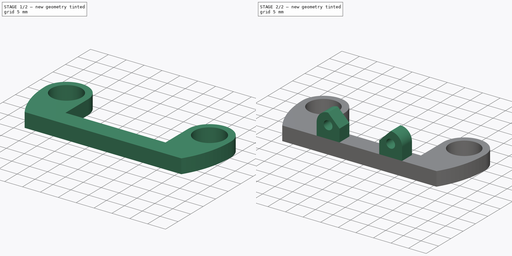
[diagram: build sequence overview — one tinted view per stage of 2, left to right]
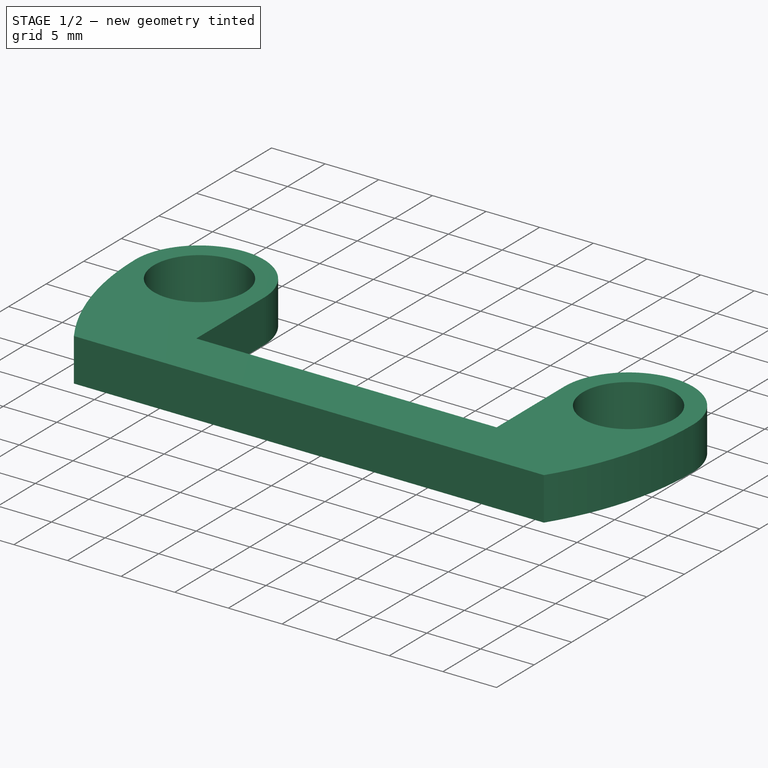
[diagram: stage 1 of 2 — iso view after this stage's code; geometry added in this stage tinted green]
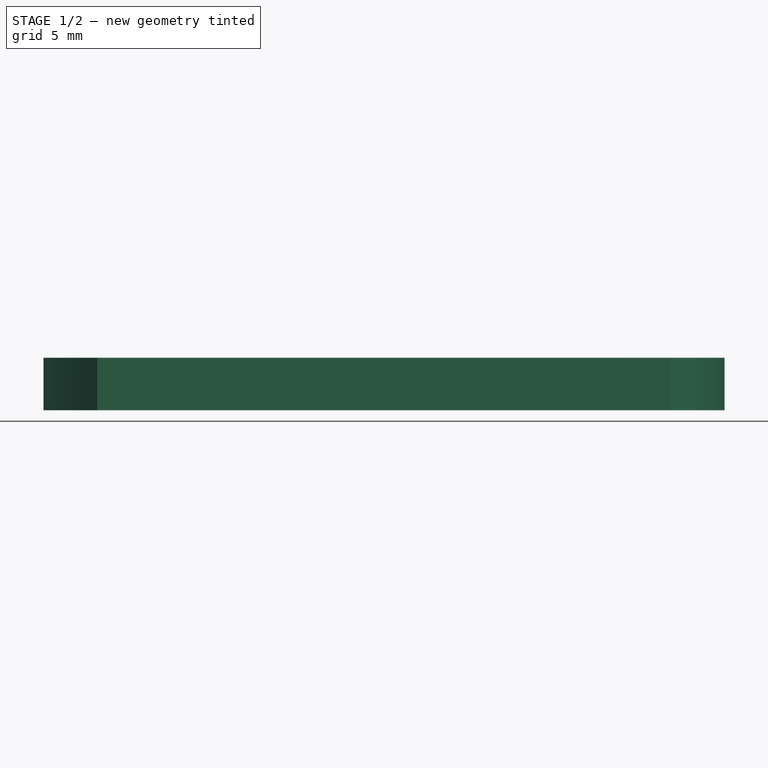
[diagram: stage 1 of 2 — front view after this stage's code; geometry added in this stage tinted green]
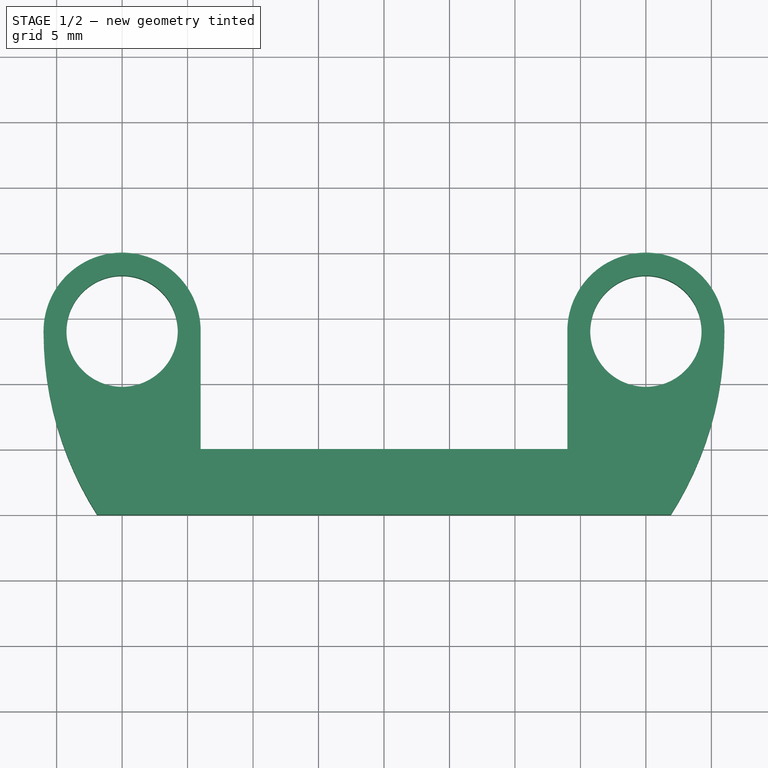
[diagram: stage 1 of 2 — top view after this stage's code; geometry added in this stage tinted green]
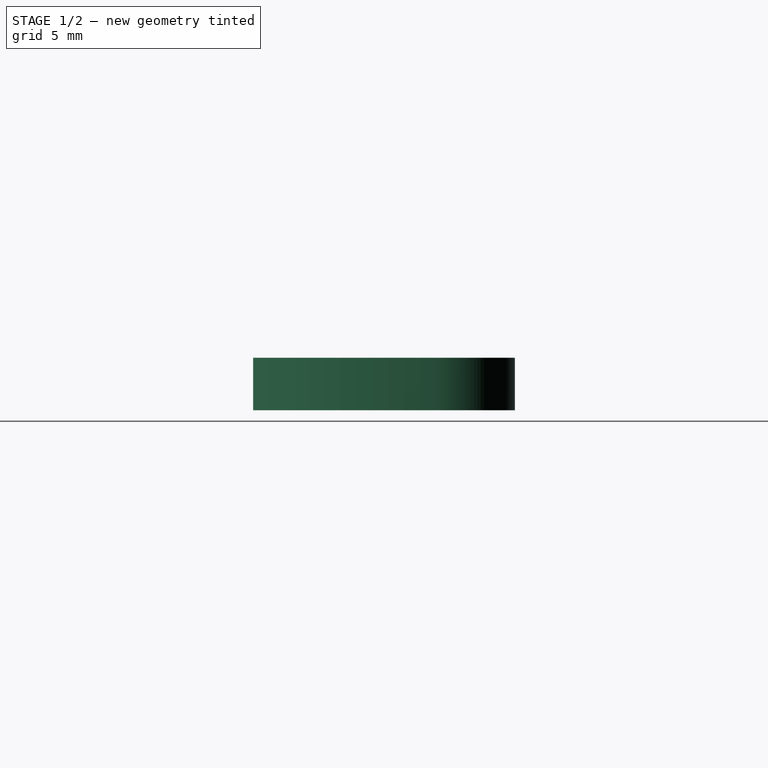
[diagram: stage 1 of 2 — right view after this stage's code; geometry added in this stage tinted green]
FCSTD DOCUMENT  (FreeCAD 1.0R38641 +468 (Git))
Label: pcb_holder
License: All rights reserved
LicenseURL: https://en.wikipedia.org/wiki/All_rights_reserved
objects: Sketcher::SketchObject×2, PartDesign::Pad×2, PartDesign::Body×1
note: 11 computed .brp shape members not serialized (recipe doc carries the construction recipe); baked Part::Feature solids carry a one-line shape summary decoded from their .brp

FEATURE [Sketcher::SketchObject] Sketch
  ArcFitTolerance = 0
  AttachmentSupport = -> [XY_Plane]
  FullyConstrained = true
  MakeInternals = false
  MapMode = 5
  sketch-geometry (11):
    g0: ArcOfCircle CenterX=-20 CenterY=14 CenterZ=0 NormalX=0 NormalY=0 NormalZ=1 AngleXU=0 Radius=6 StartAngle=0 EndAngle=3.14159
    g1: ArcOfCircle CenterX=20 CenterY=14 CenterZ=0 NormalX=0 NormalY=0 NormalZ=1 AngleXU=0 Radius=6 StartAngle=0 EndAngle=3.14159
    g2: LineSegment StartX=-14 StartY=14 StartZ=0 EndX=-14 EndY=5 EndZ=0
    g3: LineSegment StartX=-14 StartY=5 StartZ=0 EndX=14 EndY=5 EndZ=0
    g4: LineSegment StartX=14 StartY=5 StartZ=0 EndX=14 EndY=14 EndZ=0
    g5: Circle CenterX=-20 CenterY=14 CenterZ=0 NormalX=0 NormalY=0 NormalZ=1 AngleXU=0 Radius=4.25
    g6: Circle CenterX=20 CenterY=14 CenterZ=0 NormalX=0 NormalY=0 NormalZ=1 AngleXU=0 Radius=4.25
    g7: GeomPoint [constr] X=0 Y=14 Z=0
    g8: ArcOfCircle CenterX=0 CenterY=14 CenterZ=0 NormalX=0 NormalY=0 NormalZ=1 AngleXU=0 Radius=26 StartAngle=5.71458 EndAngle=6.28319
    g9: ArcOfCircle CenterX=0 CenterY=14 CenterZ=0 NormalX=0 NormalY=0 NormalZ=1 AngleXU=0 Radius=26 StartAngle=3.14159 EndAngle=3.7102
    g10: LineSegment StartX=-21.9089 StartY=9.1127e-12 StartZ=0 EndX=21.9089 EndY=9.1074e-12 EndZ=0
  constraints (30):
    c: Coincident(g2,g0)
    c: Vertical(g2)
    c: Coincident(g3,g2)
    c: Coincident(g4,g3)
    c: Coincident(g4,g1)
    c: Vertical(g4)
    c: Horizontal(g0,g0)
    c: Horizontal(g0,g0)
    c: Horizontal(g0,g1)
    c: Horizontal(g1,g1)
    c: Symmetric(g2,g3,g-2)
    c: Coincident(g5,g0)
    c: Coincident(g6,g1)
    c: Diameter(g5) = 8.5
    c: Equal(g5,g6)
    c: DistanceX(g0,g1) = 40
    c: DistanceY(g-1,g3) = 5
    c: DistanceX(g3,g3) = 28
    c: PointOnObject(g7,g-2)
    c: Horizontal(g7,g0)
    c: Coincident(g8,g7)
    c: Coincident(g8,g1)
    c: PointOnObject(g8,g-1)
    c: Coincident(g9,g8)
    c: Coincident(g9,g0)
    c: PointOnObject(g9,g-1)
    c: Coincident(g10,g9)
    c: Coincident(g10,g8)
    c: Symmetric(g0,g1,g-2)
    c: DistanceY(g-1,g1) = 14
FEATURE [PartDesign::Pad] Pad
  Direction = (0,0,1)
  Length = 4
  Length2 = 10
  Profile = -> Sketch
  ReferenceAxis = -> Sketch [N_Axis]
  Suppressed = false
  Type = 0
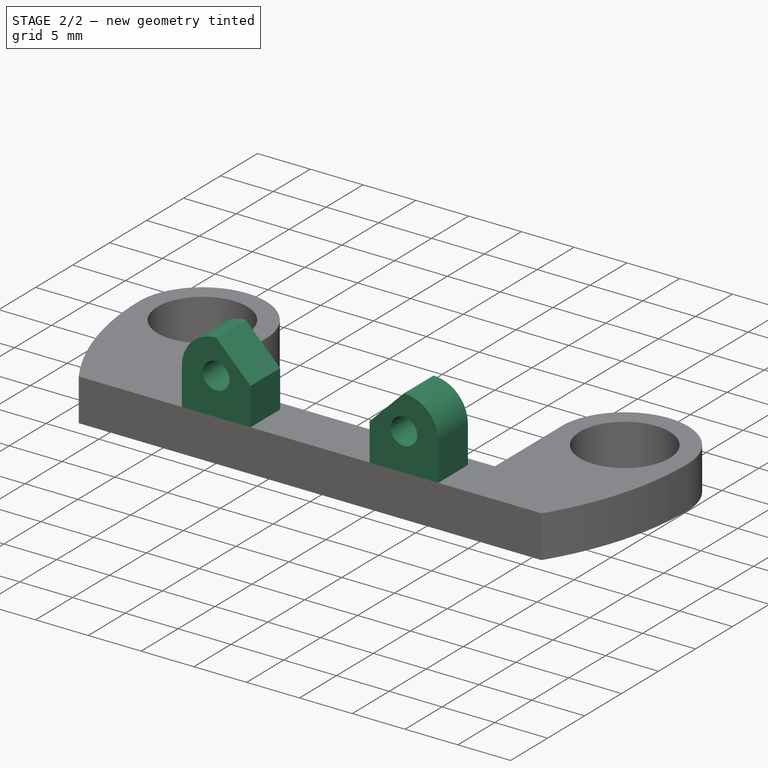
[diagram: stage 2 of 2 — iso view after this stage's code; geometry added in this stage tinted green]
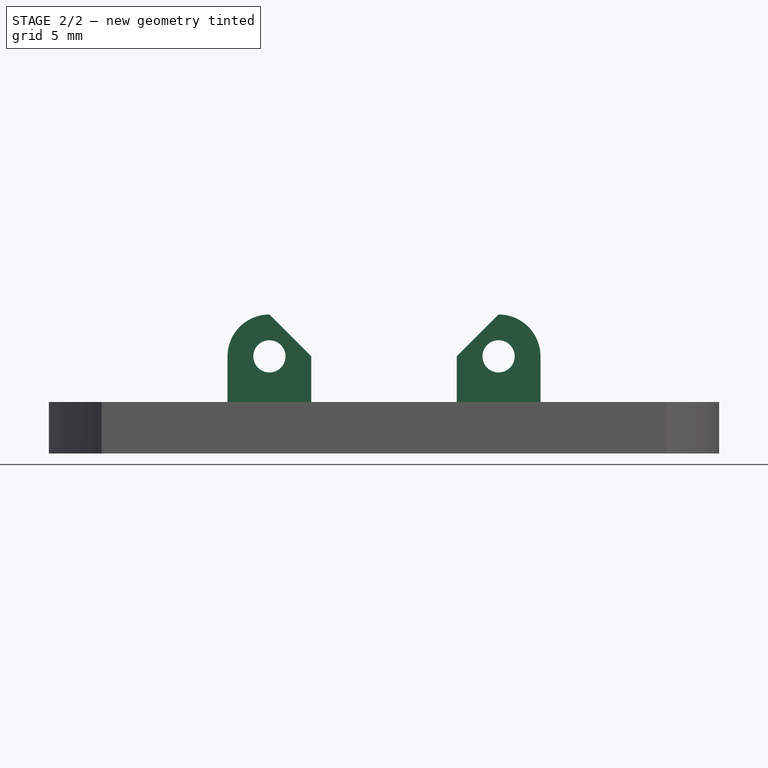
[diagram: stage 2 of 2 — front view after this stage's code; geometry added in this stage tinted green]
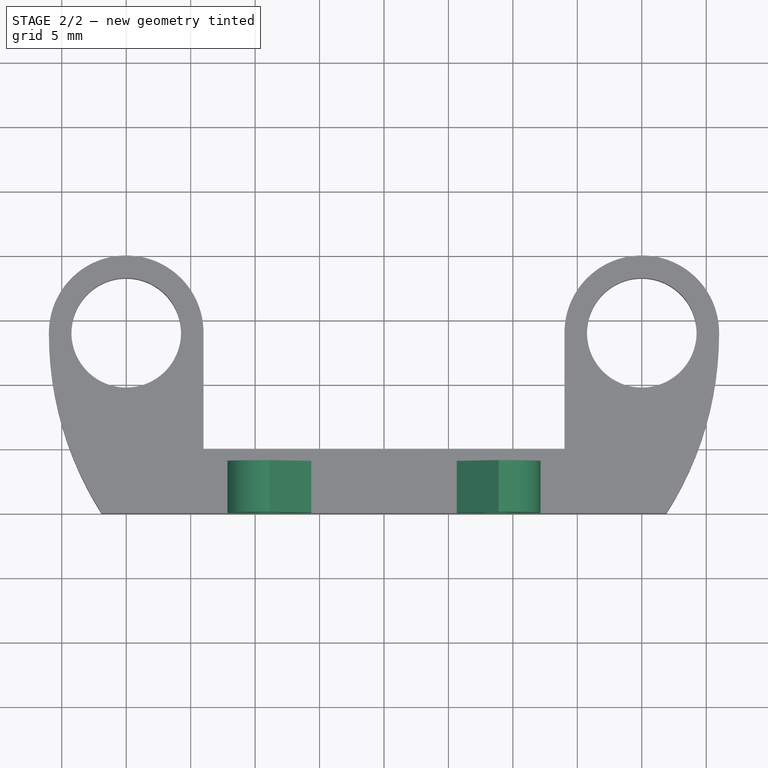
[diagram: stage 2 of 2 — top view after this stage's code; geometry added in this stage tinted green]
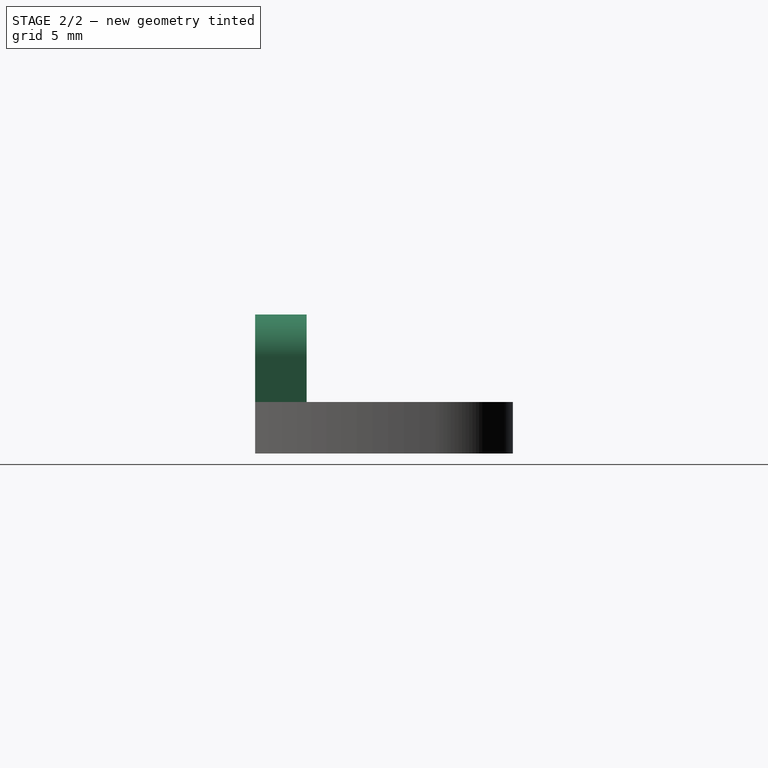
[diagram: stage 2 of 2 — right view after this stage's code; geometry added in this stage tinted green]
FEATURE [Sketcher::SketchObject] Sketch001
  ArcFitTolerance = 0
  AttachmentSupport = -> [Pad]
  FullyConstrained = true
  MakeInternals = false
  MapMode = 5
  Placement = pos=(0,9.11e-12,0) rot=(1,0,0;1.5708rad)
  expr: Constraints[26] = 0.7 * 25.4
  sketch-geometry (12):
    g0: LineSegment StartX=-5.64 StartY=7.54 StartZ=0 EndX=-5.64 EndY=3.19 EndZ=0
    g1: LineSegment StartX=-5.64 StartY=3.19 StartZ=0 EndX=5.64 EndY=3.19 EndZ=0
    g2: LineSegment StartX=5.64 StartY=3.19 StartZ=0 EndX=5.64 EndY=7.54 EndZ=0
    g3: LineSegment StartX=12.14 StartY=7.54 StartZ=0 EndX=12.14 EndY=0 EndZ=0
    g4: LineSegment StartX=12.14 StartY=0 StartZ=0 EndX=-12.14 EndY=0 EndZ=0
    g5: LineSegment StartX=-12.14 StartY=0 StartZ=0 EndX=-12.14 EndY=7.54 EndZ=0
    g6: Circle CenterX=-8.89 CenterY=7.54 CenterZ=0 NormalX=0 NormalY=0 NormalZ=1 AngleXU=0 Radius=1.25
    g7: Circle CenterX=8.89 CenterY=7.54 CenterZ=0 NormalX=0 NormalY=0 NormalZ=1 AngleXU=0 Radius=1.25
    g8: ArcOfCircle CenterX=-8.89 CenterY=7.54 CenterZ=0 NormalX=0 NormalY=0 NormalZ=1 AngleXU=0 Radius=3.25 StartAngle=1.5708 EndAngle=3.14159
    g9: ArcOfCircle CenterX=8.89 CenterY=7.54 CenterZ=0 NormalX=0 NormalY=0 NormalZ=1 AngleXU=0 Radius=3.25 StartAngle=0 EndAngle=1.5708
    g10: LineSegment StartX=-8.89 StartY=10.79 StartZ=0 EndX=-5.64 EndY=7.54 EndZ=0
    g11: LineSegment StartX=8.89 StartY=10.79 StartZ=0 EndX=5.64 EndY=7.54 EndZ=0
  constraints (35):
    c: Vertical(g0)
    c: Coincident(g1,g0)
    c: Horizontal(g1)
    c: Coincident(g2,g1)
    c: PointOnObject(g3,g-1)
    c: Vertical(g3)
    c: PointOnObject(g4,g-1)
    c: Coincident(g5,g4)
    c: Vertical(g4,g5)
    c: Vertical(g1,g2)
    c: Diameter(g6) = 2.5
    c: Equal(g7,g6)
    c: Coincident(g3,g4)
    c: DistanceY(g-1,g1) = 3.19
    c: Coincident(g8,g6)
    c: Coincident(g8,g5)
    c: Coincident(g9,g7)
    c: Coincident(g9,g3)
    c: Vertical(g7,g9)
    c: Vertical(g6,g8)
    c: Coincident(g10,g8)
    c: Coincident(g10,g0)
    c: Coincident(g11,g9)
    c: Coincident(g11,g2)
    c: Radius(g9) = 3.25
    c: Equal(g9,g8)
    c: DistanceX(g6,g7) = 17.78
    c: DistanceY(g-1,g7) = 7.54
    c: Symmetric(g2,g0,g-2)
    c: Angle(g2,g11) = 2.35619
    c: Angle(g10,g0) = 2.35619
    c: Symmetric(g9,g8,g-2)
    c: Horizontal(g0,g6)
    c: Horizontal(g5,g6)
    c: Horizontal(g7,g3)
FEATURE [PartDesign::Pad] Pad001
  BaseFeature = -> Pad
  Direction = (0,-1,2e-16)
  Length = 4
  Length2 = 10
  Profile = -> Sketch001
  ReferenceAxis = -> Sketch001 [N_Axis]
  Reversed = true
  Suppressed = false
  Type = 0
FEATURE [PartDesign::Body] Body  label="Körper"
  AllowCompound = false
  Group = -> [Sketch,Pad,Sketch001,Pad001]
  Origin = -> Origin
  Tip = -> Pad001
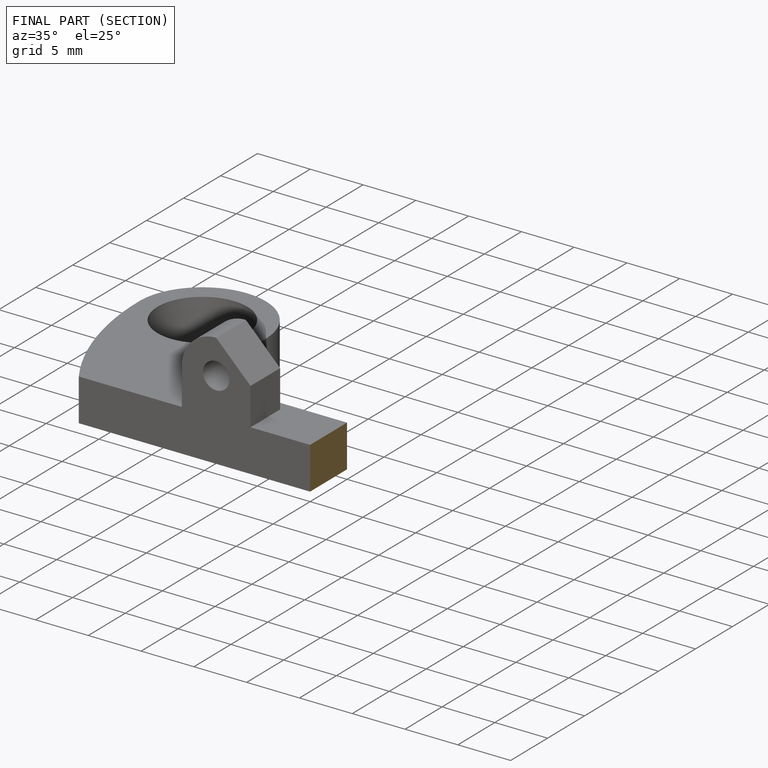
[diagram: finished part — half-section view (interior)]
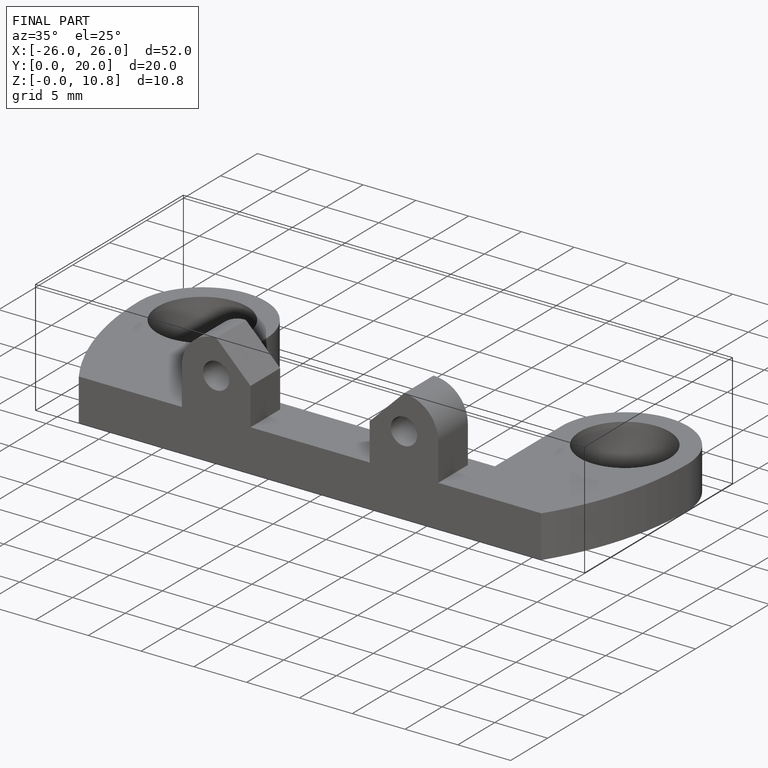
[diagram: finished part — iso view with bounding-box wireframe]
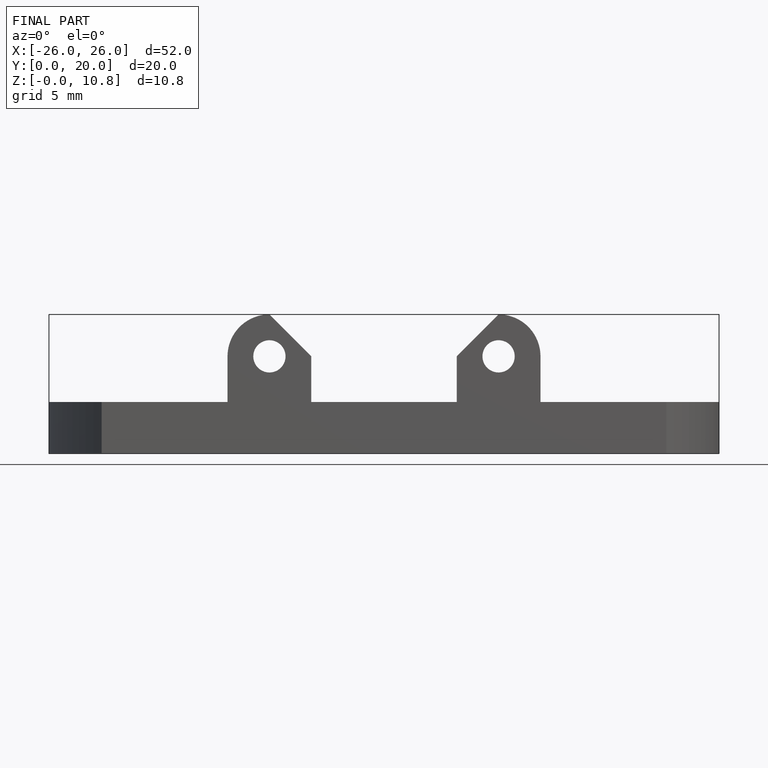
[diagram: finished part — front view with bounding-box wireframe]
